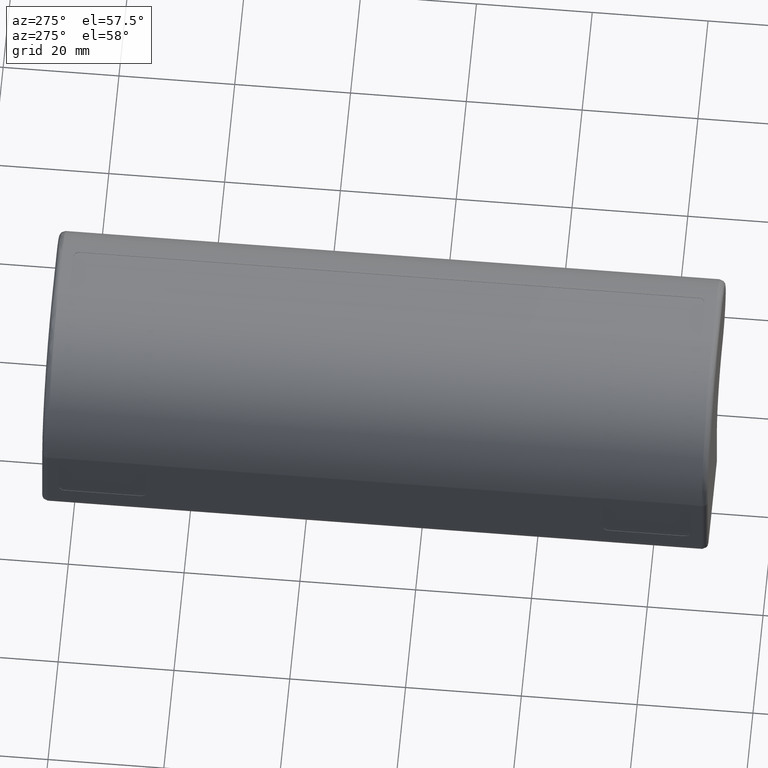
[diagram: clean part render]
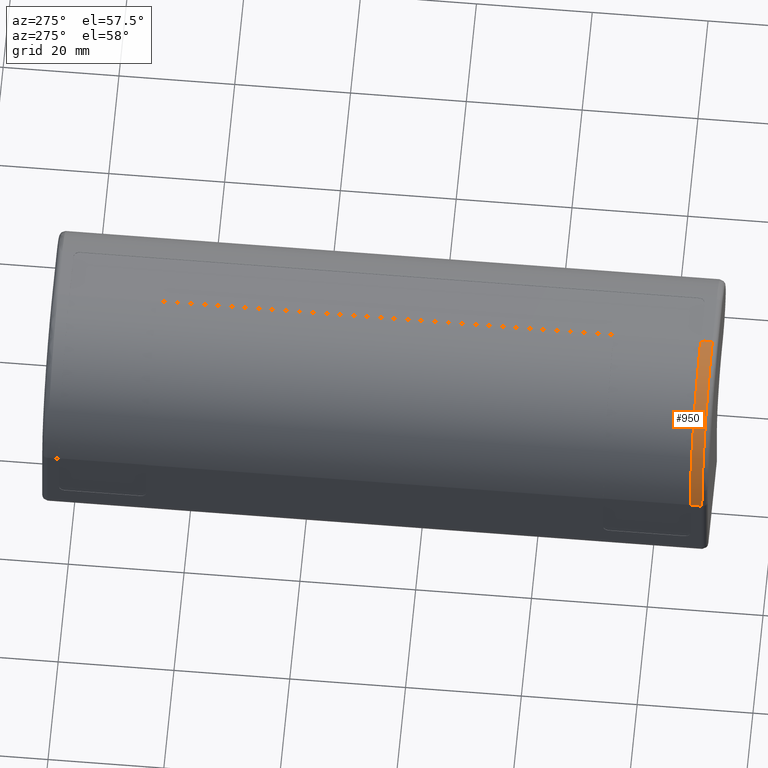
[diagram: same view with one face highlighted and labeled with its STEP entity id]
A machine part, auxiliary view. The second image highlights one B-rep face of the part: STEP entity #950.
In plain terms, the highlighted cylindrical surface (partial cylindrical patch) has radius 20.3622 mm, axis along (0, -1, 0).
Its self-contained STEP definition (entity closure, byte-faithful):
#78=FACE_OUTER_BOUND('',#136,.T.);
#136=EDGE_LOOP('',(#730,#731,#732,#733));
#218=LINE('',#1520,#295);
#226=LINE('',#1543,#303);
#295=VECTOR('',#1206,2.00000000000001);
#303=VECTOR('',#1234,2.00000000000001);
#336=CIRCLE('',#999,20.3622382391187);
#352=CIRCLE('',#1031,20.3622382391187);
#404=VERTEX_POINT('',#1434);
#405=VERTEX_POINT('',#1436);
#436=VERTEX_POINT('',#1519);
#441=VERTEX_POINT('',#1542);
#495=EDGE_CURVE('',#405,#404,#336,.T.);
#537=EDGE_CURVE('',#436,#405,#218,.T.);
#549=EDGE_CURVE('',#441,#404,#226,.T.);
#550=EDGE_CURVE('',#436,#441,#352,.T.);
#730=ORIENTED_EDGE('',*,*,#495,.T.);
#731=ORIENTED_EDGE('',*,*,#549,.F.);
#732=ORIENTED_EDGE('',*,*,#550,.F.);
#733=ORIENTED_EDGE('',*,*,#537,.T.);
#913=CYLINDRICAL_SURFACE('',#1030,20.3622382391187);
#950=ADVANCED_FACE('',(#78),#913,.T.);
#999=AXIS2_PLACEMENT_3D('',#1437,#1132,#1133);
#1030=AXIS2_PLACEMENT_3D('',#1541,#1232,#1233);
#1031=AXIS2_PLACEMENT_3D('',#1544,#1235,#1236);
#1132=DIRECTION('center_axis',(0.,-1.,0.));
#1133=DIRECTION('ref_axis',(0.011199536893843,0.,0.999937283219984));
#1206=DIRECTION('',(0.,1.,0.));
#1232=DIRECTION('center_axis',(0.,-1.,0.));
#1233=DIRECTION('ref_axis',(0.011199536893843,0.,0.999937283219984));
#1234=DIRECTION('',(0.,1.,0.));
#1235=DIRECTION('center_axis',(0.,-1.,0.));
#1236=DIRECTION('ref_axis',(-1.,0.,0.));
#1434=CARTESIAN_POINT('',(-9.49999999996167,-6.49999999996179,15.1441380617739));
#1436=CARTESIAN_POINT('',(11.0848844344493,-6.49999999996179,35.5051590277857));
#1437=CARTESIAN_POINT('Origin',(10.862238239157,-6.49999999996179,15.1441380617745));
#1519=CARTESIAN_POINT('',(11.0848844344493,-8.4999999999618,35.5051590277857));
#1520=CARTESIAN_POINT('',(11.0848844344493,-8.4999999999618,35.5051590277857));
#1541=CARTESIAN_POINT('Origin',(10.862238239157,-9.4999999999618,15.1441380617745));
#1542=CARTESIAN_POINT('',(-9.49999999996167,-8.4999999999618,15.1441380617739));
#1543=CARTESIAN_POINT('',(-9.49999999996167,-8.4999999999618,15.1441380617739));
#1544=CARTESIAN_POINT('Origin',(10.862238239157,-8.4999999999618,15.1441380617745));